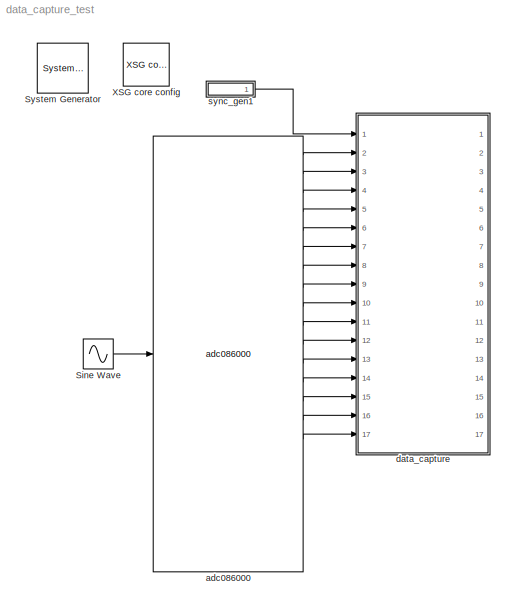
MODEL data_capture_test
KIND model
BLOCK [Reference]  System Generator  REF=xbsIndex_r4/ System Generator
  AttributesFormatString = System\\nGenerator
  FunctionWithSeparateData = off
  Ports = []
  RTWMemSecDataConstants = Inherit from model
  RTWMemSecDataInternal = Inherit from model
  RTWMemSecDataParameters = Inherit from model
  RTWMemSecFuncExecute = Inherit from model
  RTWMemSecFuncInitTerm = Inherit from model
  ShowPortLabels = FromPortIcon
  SourceBlock = xbsIndex_r4/ System Generator
  SourceType = Xilinx System Generator Block
  SystemSampleTime = -1
  Tag = genX
  UserData = DataTag0
  UserDataPersistent = on
  block_type = sysgen
  block_version = 10.1.3
  clock_wrapper = Clock Enables
  core_generation = According to Block Masks
  dbl_ovrd = According to Block Masks
  dcm_input_clock_period = 100
  deprecated_control = off
  directory = ./roach_spec_2adc_borph2/sysgen
  eval_field = 0
  has_advanced_control = 0
  incr_netlist = off
  infoedit = System Generator
  package = ff1136
  part = xc5vsx95t
  run_coregen = off
  sg_icon_stat = 51,50,-1,-1,red,beige,0,07734,right
  sg_mask_display = fprintf('','COMMENT: begin icon graphics');\npatch([0 51 51 0 ],[0 0 50 50 ],[0.93 0.92 0.86]);\npatch([12 4 16 4 12 25 29 33 47 36 25 17 29 17 25 36 47 33 29 25 12 ],[5 13 25 37 45 45 41 45 45 34 45 37 25 13 5 16 5 5 9 5 5 ],[0.6 0.2 0.25]);\nplot([0 51 51 0 0 ],[0 0 50 50 0 ]);\nfprintf('','COMMENT: end icon graphics');\nfprintf('','COMMENT: begin icon text');\nfprintf('','COMMENT: end icon text...<+5ch>
  sggui_pos = -1,-1,-1,-1
  simulink_period = 1
  speed = -1
  synthesis_tool = XST
  sysclk_period = 10
  testbench = off
  trim_vbits = Everywhere in SubSystem
  xilinxfamily = virtex5
BLOCK [Sin] Sine Wave
  Frequency = 8*pi/3
  Ports = [0, 1]
  SampleTime = 1/16
  Samples = 2*pi/4
  SineType = Time based
BLOCK [Reference] XSG core config  REF=xps_library/XSG core config  (lib defined in mdl_00b5cec29cd0, mdl_02ab6ecaa3d1, +5 more)
  BEE2_ctrl_clk_src = sys_clk
  BEE2_usr_clk_src = sys_clk
  CORR_clk_src = sys_clk
  FunctionWithSeparateData = off
  Ports = []
  ROACH_clk_src = adc0_clk
  RTWMemSecDataConstants = Inherit from model
  RTWMemSecDataInternal = Inherit from model
  RTWMemSecDataParameters = Inherit from model
  RTWMemSecFuncExecute = Inherit from model
  RTWMemSecFuncInitTerm = Inherit from model
  ShowPortLabels = FromPortIcon
  SourceBlock = xps_library/XSG core config
  SourceType = xsg core config
  SystemSampleTime = -1
  Tag = xps:xsg
  clk_rate = 100
  clk_src = adc0_clk
  gpio_clk_bit_index = 0
  gpio_clk_io_group = iBOB:sma
  hw_sys = ROACH:sx95t
  iBOB_clk_src = sys_clk
  ibob_linux = off
  mpc_type = powerpc440_ext
  sample_period = 1
  synthesis_tool = XST
BLOCK [Reference] adc086000  REF=xps_library/adc086000  (lib defined in mdl_00b5cec29cd0, mdl_02ab6ecaa3d1, +5 more)
  FunctionWithSeparateData = off
  Ports = [1, 22]
  RTWMemSecDataConstants = Inherit from model
  RTWMemSecDataInternal = Inherit from model
  RTWMemSecDataParameters = Inherit from model
  RTWMemSecFuncExecute = Inherit from model
  RTWMemSecFuncInitTerm = Inherit from model
  ShowPortLabels = FromPortIcon
  SourceBlock = xps_library/adc086000
  SourceType = adc_086000
  SystemSampleTime = -1
  Tag = xps:adc086000
  adc_brd = adc0
  adc_clk_rate = 400
  adc_interleave = on
  sample_period = 1
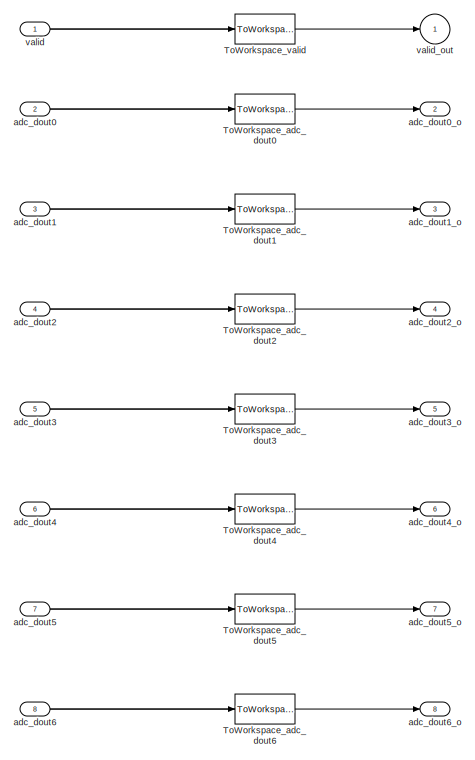
[diagram: data_capture - part 1/2, full width, top band]
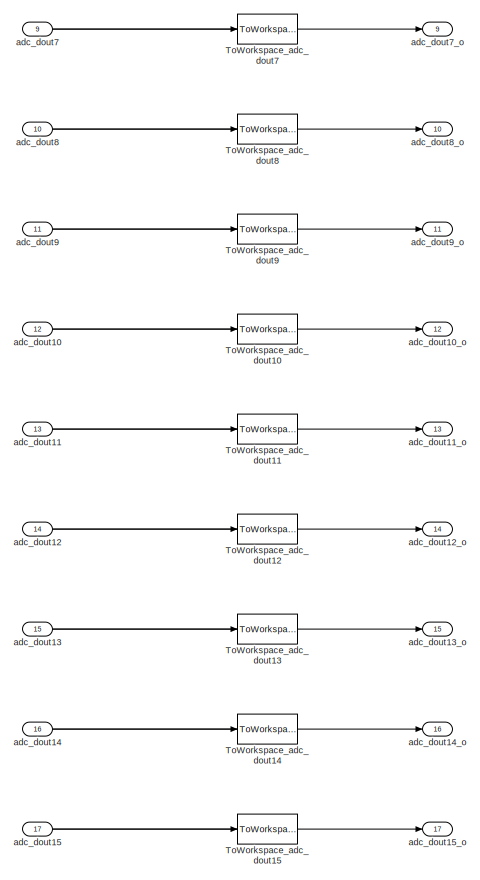
[diagram: data_capture - part 2/2, full width, bottom band]
BLOCK [SubSystem] data_capture
  AncestorBlock = casper_library/Scopes/data_capture
  FunctionWithSeparateData = off
  MaskCallbackString = |
  MaskDescription = This block is useful for capturing parallel data streams\nsimultaneously and sending the data in structures for analysis\nusing MATLAB.  It is intended as a partial replacement for the\nSimulink scope block when used with the functions in data_capture_tools.\n\nThe block does not alter the data at all and costs no hardware\nbecause it is purely a simulation block.  The block's Simulink\noutputs ar...<+47ch>
  MaskEnableString = on,on
  MaskIconFrame = on
  MaskIconOpaque = off
  MaskIconRotate = none
  MaskIconUnits = autoscale
  MaskInitialization = data_capture_init(gcb, ...\n    'stream_name', stream_name, ...\n    'nsimult_streams', nsimult_streams);
  MaskPromptString = Stream Name|Number Of Simultaneous Streams
  MaskStyleString = edit,edit
  MaskTabNameString = ,
  MaskToolTipString = on,on
  MaskTunableValueString = on,on
  MaskType = data_capture
  MaskValueString = adc_dout|16
  MaskVarAliasString = ,
  MaskVariables = stream_name=&1;nsimult_streams=@2;
  MaskVisibilityString = on,on
  MinAlgLoopOccurrences = off
  Ports = [17, 17]
  RTWSystemCode = Auto
  UserData = DataTag1
  UserDataPersistent = on
BLOCK [ToWorkspace] data_capture/ToWorkspace_adc_dout0
  MaxDataPoints = inf
  SampleTime = -1
  SaveFormat = Structure
  VariableName = adc_dout0
BLOCK [ToWorkspace] data_capture/ToWorkspace_adc_dout1
  MaxDataPoints = inf
  SampleTime = -1
  SaveFormat = Structure
  VariableName = adc_dout1
BLOCK [ToWorkspace] data_capture/ToWorkspace_adc_dout10
  MaxDataPoints = inf
  SampleTime = -1
  SaveFormat = Structure
  VariableName = adc_dout10
BLOCK [ToWorkspace] data_capture/ToWorkspace_adc_dout11
  MaxDataPoints = inf
  SampleTime = -1
  SaveFormat = Structure
  VariableName = adc_dout11
BLOCK [ToWorkspace] data_capture/ToWorkspace_adc_dout12
  MaxDataPoints = inf
  SampleTime = -1
  SaveFormat = Structure
  VariableName = adc_dout12
BLOCK [ToWorkspace] data_capture/ToWorkspace_adc_dout13
  MaxDataPoints = inf
  SampleTime = -1
  SaveFormat = Structure
  VariableName = adc_dout13
BLOCK [ToWorkspace] data_capture/ToWorkspace_adc_dout14
  MaxDataPoints = inf
  SampleTime = -1
  SaveFormat = Structure
  VariableName = adc_dout14
BLOCK [ToWorkspace] data_capture/ToWorkspace_adc_dout15
  MaxDataPoints = inf
  SampleTime = -1
  SaveFormat = Structure
  VariableName = adc_dout15
BLOCK [ToWorkspace] data_capture/ToWorkspace_adc_dout2
  MaxDataPoints = inf
  SampleTime = -1
  SaveFormat = Structure
  VariableName = adc_dout2
BLOCK [ToWorkspace] data_capture/ToWorkspace_adc_dout3
  MaxDataPoints = inf
  SampleTime = -1
  SaveFormat = Structure
  VariableName = adc_dout3
BLOCK [ToWorkspace] data_capture/ToWorkspace_adc_dout4
  MaxDataPoints = inf
  SampleTime = -1
  SaveFormat = Structure
  VariableName = adc_dout4
BLOCK [ToWorkspace] data_capture/ToWorkspace_adc_dout5
  MaxDataPoints = inf
  SampleTime = -1
  SaveFormat = Structure
  VariableName = adc_dout5
BLOCK [ToWorkspace] data_capture/ToWorkspace_adc_dout6
  MaxDataPoints = inf
  SampleTime = -1
  SaveFormat = Structure
  VariableName = adc_dout6
BLOCK [ToWorkspace] data_capture/ToWorkspace_adc_dout7
  MaxDataPoints = inf
  SampleTime = -1
  SaveFormat = Structure
  VariableName = adc_dout7
BLOCK [ToWorkspace] data_capture/ToWorkspace_adc_dout8
  MaxDataPoints = inf
  SampleTime = -1
  SaveFormat = Structure
  VariableName = adc_dout8
BLOCK [ToWorkspace] data_capture/ToWorkspace_adc_dout9
  MaxDataPoints = inf
  SampleTime = -1
  SaveFormat = Structure
  VariableName = adc_dout9
BLOCK [ToWorkspace] data_capture/ToWorkspace_valid
  MaxDataPoints = inf
  SampleTime = -1
  SaveFormat = Structure
  VariableName = adc_dout_valid
BLOCK [Inport] data_capture/adc_dout0
  IconDisplay = Port number
  OutDataType = sfix(16)
  OutScaling = 2^0
  Port = 2
BLOCK [Outport] data_capture/adc_dout0_o
  IconDisplay = Port number
  OutDataType = sfix(16)
  OutScaling = 2^0
  Port = 2
BLOCK [Inport] data_capture/adc_dout1
  IconDisplay = Port number
  OutDataType = sfix(16)
  OutScaling = 2^0
  Port = 3
BLOCK [Inport] data_capture/adc_dout10
  IconDisplay = Port number
  OutDataType = sfix(16)
  OutScaling = 2^0
  Port = 12
BLOCK [Outport] data_capture/adc_dout10_o
  IconDisplay = Port number
  OutDataType = sfix(16)
  OutScaling = 2^0
  Port = 12
BLOCK [Inport] data_capture/adc_dout11
  IconDisplay = Port number
  OutDataType = sfix(16)
  OutScaling = 2^0
  Port = 13
BLOCK [Outport] data_capture/adc_dout11_o
  IconDisplay = Port number
  OutDataType = sfix(16)
  OutScaling = 2^0
  Port = 13
BLOCK [Inport] data_capture/adc_dout12
  IconDisplay = Port number
  OutDataType = sfix(16)
  OutScaling = 2^0
  Port = 14
BLOCK [Outport] data_capture/adc_dout12_o
  IconDisplay = Port number
  OutDataType = sfix(16)
  OutScaling = 2^0
  Port = 14
BLOCK [Inport] data_capture/adc_dout13
  IconDisplay = Port number
  OutDataType = sfix(16)
  OutScaling = 2^0
  Port = 15
BLOCK [Outport] data_capture/adc_dout13_o
  IconDisplay = Port number
  OutDataType = sfix(16)
  OutScaling = 2^0
  Port = 15
BLOCK [Inport] data_capture/adc_dout14
  IconDisplay = Port number
  OutDataType = sfix(16)
  OutScaling = 2^0
  Port = 16
BLOCK [Outport] data_capture/adc_dout14_o
  IconDisplay = Port number
  OutDataType = sfix(16)
  OutScaling = 2^0
  Port = 16
BLOCK [Inport] data_capture/adc_dout15
  IconDisplay = Port number
  OutDataType = sfix(16)
  OutScaling = 2^0
  Port = 17
BLOCK [Outport] data_capture/adc_dout15_o
  IconDisplay = Port number
  OutDataType = sfix(16)
  OutScaling = 2^0
  Port = 17
BLOCK [Outport] data_capture/adc_dout1_o
  IconDisplay = Port number
  OutDataType = sfix(16)
  OutScaling = 2^0
  Port = 3
BLOCK [Inport] data_capture/adc_dout2
  IconDisplay = Port number
  OutDataType = sfix(16)
  OutScaling = 2^0
  Port = 4
BLOCK [Outport] data_capture/adc_dout2_o
  IconDisplay = Port number
  OutDataType = sfix(16)
  OutScaling = 2^0
  Port = 4
BLOCK [Inport] data_capture/adc_dout3
  IconDisplay = Port number
  OutDataType = sfix(16)
  OutScaling = 2^0
  Port = 5
BLOCK [Outport] data_capture/adc_dout3_o
  IconDisplay = Port number
  OutDataType = sfix(16)
  OutScaling = 2^0
  Port = 5
BLOCK [Inport] data_capture/adc_dout4
  IconDisplay = Port number
  OutDataType = sfix(16)
  OutScaling = 2^0
  Port = 6
BLOCK [Outport] data_capture/adc_dout4_o
  IconDisplay = Port number
  OutDataType = sfix(16)
  OutScaling = 2^0
  Port = 6
BLOCK [Inport] data_capture/adc_dout5
  IconDisplay = Port number
  OutDataType = sfix(16)
  OutScaling = 2^0
  Port = 7
BLOCK [Outport] data_capture/adc_dout5_o
  IconDisplay = Port number
  OutDataType = sfix(16)
  OutScaling = 2^0
  Port = 7
BLOCK [Inport] data_capture/adc_dout6
  IconDisplay = Port number
  OutDataType = sfix(16)
  OutScaling = 2^0
  Port = 8
BLOCK [Outport] data_capture/adc_dout6_o
  IconDisplay = Port number
  OutDataType = sfix(16)
  OutScaling = 2^0
  Port = 8
BLOCK [Inport] data_capture/adc_dout7
  IconDisplay = Port number
  OutDataType = sfix(16)
  OutScaling = 2^0
  Port = 9
BLOCK [Outport] data_capture/adc_dout7_o
  IconDisplay = Port number
  OutDataType = sfix(16)
  OutScaling = 2^0
  Port = 9
BLOCK [Inport] data_capture/adc_dout8
  IconDisplay = Port number
  OutDataType = sfix(16)
  OutScaling = 2^0
  Port = 10
BLOCK [Outport] data_capture/adc_dout8_o
  IconDisplay = Port number
  OutDataType = sfix(16)
  OutScaling = 2^0
  Port = 10
BLOCK [Inport] data_capture/adc_dout9
  IconDisplay = Port number
  OutDataType = sfix(16)
  OutScaling = 2^0
  Port = 11
BLOCK [Outport] data_capture/adc_dout9_o
  IconDisplay = Port number
  OutDataType = sfix(16)
  OutScaling = 2^0
  Port = 11
BLOCK [Inport] data_capture/valid
  IconDisplay = Port number
  OutDataType = sfix(16)
  OutScaling = 2^0
BLOCK [Outport] data_capture/valid_out
  IconDisplay = Port number
  OutDataType = sfix(16)
  OutScaling = 2^0
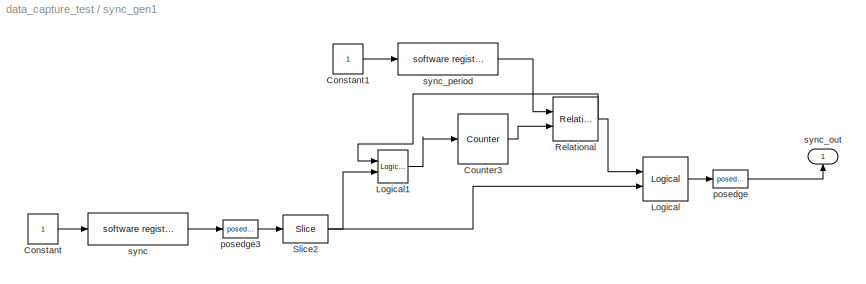
BLOCK [SubSystem] sync_gen1
  AttributesFormatString = sim_sync_period=96
  FunctionWithSeparateData = off
  MaskCallbackString = |||||||
  MaskDescription = sim_acc_len: The accumulation length (i.e. number of spectra to be summed)  that will be used for simulation. If there is no vector accumulator in your design, use 1.  The simulated accumulation length is used to reduce the amount of time the design takes for simulation.\n\ngen_acc_len:  The accumaltion length that will be used for generation.\n\nfft_size: The size of the FFT.\n\nfft_simult_inputs...<+682ch>
  MaskEnableString = on,on,on,on,on,on,on,on
  MaskHelp = \nSyncPeriod=LCM(reorder_vec)*(acc_num)*(pfb_fir_len)*(fft_size/fft_simult_inputs)\n\nSee CASPER sync pulse memo for more details.\n
  MaskIconFrame = on
  MaskIconOpaque = on
  MaskIconRotate = none
  MaskIconUnits = autoscale
  MaskInitialization = sync_gen_init(gcb, ...\n    'sim_acc_len', sim_acc_len, ...\n    'fft_size', fft_size, ...\n    'gen_acc_len', gen_acc_len, ...\n    'fft_simult_inputs', fft_simult_inputs,...\n    'pfb_fir_taps', pfb_fir_taps, ...\n    'reorder_vec', reorder_vec, ...\n    'use_soft_reg', use_soft_reg, ...\n    'scale', scale);
  MaskPromptString = Simulation Accumulation Length|Set on FPGA using software registers|Synthesized Accumulation Length|FFT Size|Simultaneous Inputs (FFT)|Taps in pfb_fir (use 1 if no pfb_fir)|Reorder Orders (e.g. [2 2 2])|Scale
  MaskStyleString = edit,checkbox,edit,edit,edit,edit,edit,edit
  MaskTabNameString = ,,,,,,,
  MaskToolTipString = on,on,on,on,on,on,on,on
  MaskTunableValueString = on,on,on,on,on,on,on,on
  MaskType = sync_gen
  MaskValueString = 6|off|6|128|16|1|2|2
  MaskVarAliasString = ,,,,,,,
  MaskVariables = sim_acc_len=@1;use_soft_reg=@2;gen_acc_len=@3;fft_size=@4;fft_simult_inputs=@5;pfb_fir_taps=@6;reorder_vec=@7;scale=@8;
  MaskVisibilityString = on,on,on,on,on,on,on,on
  MinAlgLoopOccurrences = off
  Ports = [0, 1]
  RTWSystemCode = Auto
  UserData = DataTag2
  UserDataPersistent = on
BLOCK [Constant] sync_gen1/Constant
  OutDataType = sfix(16)
  OutScaling = 2^0
BLOCK [Constant] sync_gen1/Constant1
  OutDataType = sfix(16)
  OutScaling = 2^0
BLOCK [Reference] sync_gen1/Counter3  REF=xbsIndex_r4/Counter
  Ports = [1, 1]
  SourceBlock = xbsIndex_r4/Counter
  SourceType = Xilinx Counter Block
  arith_type = Unsigned
  bin_pt = 0
  block_type = counter
  block_version = 10.1.3
  cnt_by_val = 1
  cnt_to = Inf
  cnt_type = Free Running
  dbl_ovrd = off
  en = off
  explicit_period = off
  has_advanced_control = 0
  implementation = Fabric
  infoedit = Hardware notes: Free running counters are the least expensive in hardware.  A count limited counter is implemented by combining a counter with a comparator.
  load_pin = off
  n_bits = 32
  operation = Up
  period = 1
  rst = on
  sg_icon_stat = 50,50,1,1,white,blue,0,300e9576,right
  sg_mask_display = fprintf('','COMMENT: begin icon graphics');\npatch([0 60 60 0 ],[0 0 60 60 ],[0.77 0.82 0.91]);\npatch([14 4 18 4 14 30 34 38 55 42 29 20 35 20 29 42 55 38 34 30 14 ],[6 16 30 44 54 54 50 54 54 41 54 45 30 15 6 19 6 6 10 6 6 ],[0.98 0.96 0.92]);\nplot([0 60 60 0 0 ],[0 0 60 60 0 ]);\nfprintf('','COMMENT: end icon graphics');\nfprintf('','COMMENT: begin icon text');\ncolor('black');port_label('inpu...<+99ch>
  sggui_pos = 20,20,348,619
  start_count = 0
  use_behavioral_HDL = off
  use_rpm = on
  xl_area = [0, 0, 0, 0, 0, 0, 0]
  xl_use_area = off
BLOCK [Reference] sync_gen1/Logical  REF=xbsIndex_r4/Logical
  Ports = [2, 1]
  SourceBlock = xbsIndex_r4/Logical
  SourceType = Xilinx Logical Block Block
  align_bp = on
  arith_type = Unsigned
  bin_pt = 2
  block_type = logical
  block_version = 10.1.3
  dbl_ovrd = off
  en = off
  has_advanced_control = 0
  inputs = 2
  latency = 0
  logical_function = OR
  n_bits = 8
  precision = Full
  sg_icon_stat = 45,44,2,1,white,blue,0,f4a65842,right
  sg_mask_display = fprintf('','COMMENT: begin icon graphics');\npatch([0 55 55 0 ],[0 0 60 60 ],[0.77 0.82 0.91]);\npatch([13 4 17 4 13 28 32 36 52 40 28 19 32 19 28 40 52 36 32 28 13 ],[8 17 30 43 52 52 48 52 52 40 52 43 30 17 8 20 8 8 12 8 8 ],[0.98 0.96 0.92]);\nplot([0 55 55 0 0 ],[0 0 60 60 0 ]);\nfprintf('','COMMENT: end icon graphics');\nfprintf('','COMMENT: begin icon text');\ncolor('black');disp('\\newlineo...<+75ch>
  sggui_pos = -1,-1,-1,-1
  xl_area = [0, 0, 0, 0, 0, 0, 0]
  xl_use_area = off
BLOCK [Reference] sync_gen1/Logical1  REF=xbsIndex_r4/Logical
  Ports = [2, 1]
  SourceBlock = xbsIndex_r4/Logical
  SourceType = Xilinx Logical Block Block
  align_bp = on
  arith_type = Unsigned
  bin_pt = 2
  block_type = logical
  block_version = 10.1.3
  dbl_ovrd = off
  en = off
  has_advanced_control = 0
  inputs = 2
  latency = 0
  logical_function = OR
  n_bits = 8
  precision = Full
  sg_icon_stat = 30,33,2,1,white,blue,0,f4a65842,right
  sg_mask_display = fprintf('','COMMENT: begin icon graphics');\npatch([0 55 55 0 ],[0 0 60 60 ],[0.77 0.82 0.91]);\npatch([13 4 17 4 13 28 32 36 52 40 28 19 32 19 28 40 52 36 32 28 13 ],[8 17 30 43 52 52 48 52 52 40 52 43 30 17 8 20 8 8 12 8 8 ],[0.98 0.96 0.92]);\nplot([0 55 55 0 0 ],[0 0 60 60 0 ]);\nfprintf('','COMMENT: end icon graphics');\nfprintf('','COMMENT: begin icon text');\ncolor('black');disp('\\newlineo...<+75ch>
  sggui_pos = -1,-1,-1,-1
  xl_area = [0, 0, 0, 0, 0, 0, 0]
  xl_use_area = off
BLOCK [Reference] sync_gen1/Relational  REF=xbsIndex_r4/Relational
  Ports = [2, 1]
  SourceBlock = xbsIndex_r4/Relational
  SourceType = Xilinx Arithmetic Relational Operator Block
  block_type = relational
  block_version = 10.1.3
  dbl_ovrd = off
  en = off
  has_advanced_control = 0
  latency = 1
  mode = a=b
  sg_icon_stat = 45,44,2,1,white,blue,0,1cf02e61,right
  sg_mask_display = fprintf('','COMMENT: begin icon graphics');\npatch([0 55 55 0 ],[0 0 56 56 ],[0.77 0.82 0.91]);\npatch([13 4 17 4 13 28 32 36 52 40 28 19 32 19 28 40 52 36 32 28 13 ],[6 15 28 41 50 50 46 50 50 38 50 41 28 15 6 18 6 6 10 6 6 ],[0.98 0.96 0.92]);\nplot([0 55 55 0 0 ],[0 0 56 56 0 ]);\nfprintf('','COMMENT: end icon graphics');\nfprintf('','COMMENT: begin icon text');\ncolor('black');port_label('inpu...<+168ch>
  sggui_pos = -1,-1,-1,-1
  xl_area = [0, 0, 0, 0, 0, 0, 0]
  xl_use_area = off
BLOCK [Reference] sync_gen1/Slice2  REF=xbsIndex_r4/Slice
  Ports = [1, 1]
  SourceBlock = xbsIndex_r4/Slice
  SourceType = Xilinx Bit Slice Extractor Block
  base0 = LSB of Input
  base1 = MSB of Input
  bit0 = 0
  bit1 = 0
  block_type = slice
  block_version = 10.1.3
  boolean_output = on
  dbl_ovrd = off
  has_advanced_control = 0
  infoedit = Extracts a given range of bits from each input sample and presents it at the output.  The output type is ordinarily unsigned with binary point at zero, but can be Boolean when the slice is one bit wide.<P><P>Hardware notes: In hardware this block costs nothing.
  mode = Lower Bit Location + Width
  nbits = 1
  sg_icon_stat = 45,28,1,1,white,blue,0,b1026674,right
  sg_mask_display = fprintf('','COMMENT: begin icon graphics');\npatch([0 60 60 0 ],[0 0 30 30 ],[0.77 0.82 0.91]);\npatch([22 17 24 17 22 30 32 34 42 35 29 24 30 24 29 35 42 34 32 30 22 ],[3 8 15 22 27 27 25 27 27 20 26 21 15 9 4 10 3 3 5 3 3 ],[0.98 0.96 0.92]);\nplot([0 60 60 0 0 ],[0 0 30 30 0 ]);\nfprintf('','COMMENT: end icon graphics');\nfprintf('','COMMENT: begin icon text');\ncolor('black');port_label('outpu...<+55ch>
  sggui_pos = -1,-1,-1,-1
BLOCK [Reference] sync_gen1/posedge  REF=casper_library/Misc/posedge  (lib defined in mdl_138b2fc3435f, mdl_4ed325b712b3, +2 more)
  FunctionWithSeparateData = off
  Ports = [1, 1]
  RTWMemSecDataConstants = Inherit from model
  RTWMemSecDataInternal = Inherit from model
  RTWMemSecDataParameters = Inherit from model
  RTWMemSecFuncExecute = Inherit from model
  RTWMemSecFuncInitTerm = Inherit from model
  ShowPortLabels = FromPortIcon
  SourceBlock = casper_library/Misc/posedge
  SourceType = posedge
  SystemSampleTime = -1
  Tag = Rising Edge Detector
BLOCK [Reference] sync_gen1/posedge3  REF=casper_library/Misc/posedge  (lib defined in mdl_138b2fc3435f, mdl_4ed325b712b3, +2 more)
  FunctionWithSeparateData = off
  Ports = [1, 1]
  RTWMemSecDataConstants = Inherit from model
  RTWMemSecDataInternal = Inherit from model
  RTWMemSecDataParameters = Inherit from model
  RTWMemSecFuncExecute = Inherit from model
  RTWMemSecFuncInitTerm = Inherit from model
  ShowPortLabels = FromPortIcon
  SourceBlock = casper_library/Misc/posedge
  SourceType = posedge
  SystemSampleTime = -1
  Tag = Rising Edge Detector
BLOCK [Reference] sync_gen1/sync  REF=xps_library/software register  (lib defined in mdl_00b5cec29cd0, mdl_02ab6ecaa3d1, +5 more)
  FunctionWithSeparateData = off
  Ports = [1, 1]
  RTWMemSecDataConstants = Inherit from model
  RTWMemSecDataInternal = Inherit from model
  RTWMemSecDataParameters = Inherit from model
  RTWMemSecFuncExecute = Inherit from model
  RTWMemSecFuncInitTerm = Inherit from model
  ShowPortLabels = FromPortIcon
  SourceBlock = xps_library/software register
  SystemSampleTime = -1
  Tag = xps:sw_reg
  arith_type = Unsigned
  bin_pt = 0
  bitwidth = 32
  gw_name = data_capture_test_sync_gen1_sync_user_data_out
  io_dir = From Processor
  sample_period = 1
BLOCK [Outport] sync_gen1/sync_out
  IconDisplay = Port number
  OutDataType = sfix(16)
  OutScaling = 2^0
BLOCK [Reference] sync_gen1/sync_period  REF=xps_library/software register  (lib defined in mdl_00b5cec29cd0, mdl_02ab6ecaa3d1, +5 more)
  FunctionWithSeparateData = off
  Ports = [1, 1]
  RTWMemSecDataConstants = Inherit from model
  RTWMemSecDataInternal = Inherit from model
  RTWMemSecDataParameters = Inherit from model
  RTWMemSecFuncExecute = Inherit from model
  RTWMemSecFuncInitTerm = Inherit from model
  ShowPortLabels = FromPortIcon
  SourceBlock = xps_library/software register
  SystemSampleTime = -1
  Tag = xps:sw_reg
  arith_type = Unsigned
  bin_pt = 0
  bitwidth = 32
  gw_name = data_capture_test_sync_gen1_sync_period_user_data_out
  io_dir = From Processor
  sample_period = 1
LINE Sine Wave:1 -> adc086000:1
LINE adc086000:1 -> data_capture:2
LINE adc086000:10 -> data_capture:11
LINE adc086000:11 -> data_capture:12
LINE adc086000:12 -> data_capture:13
LINE adc086000:13 -> data_capture:14
LINE adc086000:14 -> data_capture:15
LINE adc086000:15 -> data_capture:16
LINE adc086000:16 -> data_capture:17
LINE adc086000:2 -> data_capture:3
LINE adc086000:3 -> data_capture:4
LINE adc086000:4 -> data_capture:5
LINE adc086000:5 -> data_capture:6
LINE adc086000:6 -> data_capture:7
LINE adc086000:7 -> data_capture:8
LINE adc086000:8 -> data_capture:9
LINE adc086000:9 -> data_capture:10
NET data_capture/adc_dout0:1 -> data_capture/ToWorkspace_adc_dout0:1, data_capture/adc_dout0_o:1
NET data_capture/adc_dout10:1 -> data_capture/ToWorkspace_adc_dout10:1, data_capture/adc_dout10_o:1
NET data_capture/adc_dout11:1 -> data_capture/ToWorkspace_adc_dout11:1, data_capture/adc_dout11_o:1
NET data_capture/adc_dout12:1 -> data_capture/ToWorkspace_adc_dout12:1, data_capture/adc_dout12_o:1
NET data_capture/adc_dout13:1 -> data_capture/ToWorkspace_adc_dout13:1, data_capture/adc_dout13_o:1
NET data_capture/adc_dout14:1 -> data_capture/ToWorkspace_adc_dout14:1, data_capture/adc_dout14_o:1
NET data_capture/adc_dout15:1 -> data_capture/ToWorkspace_adc_dout15:1, data_capture/adc_dout15_o:1
NET data_capture/adc_dout1:1 -> data_capture/ToWorkspace_adc_dout1:1, data_capture/adc_dout1_o:1
NET data_capture/adc_dout2:1 -> data_capture/ToWorkspace_adc_dout2:1, data_capture/adc_dout2_o:1
NET data_capture/adc_dout3:1 -> data_capture/ToWorkspace_adc_dout3:1, data_capture/adc_dout3_o:1
NET data_capture/adc_dout4:1 -> data_capture/ToWorkspace_adc_dout4:1, data_capture/adc_dout4_o:1
NET data_capture/adc_dout5:1 -> data_capture/ToWorkspace_adc_dout5:1, data_capture/adc_dout5_o:1
NET data_capture/adc_dout6:1 -> data_capture/ToWorkspace_adc_dout6:1, data_capture/adc_dout6_o:1
NET data_capture/adc_dout7:1 -> data_capture/ToWorkspace_adc_dout7:1, data_capture/adc_dout7_o:1
NET data_capture/adc_dout8:1 -> data_capture/ToWorkspace_adc_dout8:1, data_capture/adc_dout8_o:1
NET data_capture/adc_dout9:1 -> data_capture/ToWorkspace_adc_dout9:1, data_capture/adc_dout9_o:1
NET data_capture/valid:1 -> data_capture/ToWorkspace_valid:1, data_capture/valid_out:1
LINE sync_gen1/Constant1:1 -> sync_gen1/sync_period:1
LINE sync_gen1/Constant:1 -> sync_gen1/sync:1
LINE sync_gen1/Counter3:1 -> sync_gen1/Relational:2
LINE sync_gen1/Logical1:1 -> sync_gen1/Counter3:1
LINE sync_gen1/Logical:1 -> sync_gen1/posedge:1
NET sync_gen1/Relational:1 -> sync_gen1/Logical1:1, sync_gen1/Logical:1
NET sync_gen1/Slice2:1 -> sync_gen1/Logical1:2, sync_gen1/Logical:2
LINE sync_gen1/posedge3:1 -> sync_gen1/Slice2:1
LINE sync_gen1/posedge:1 -> sync_gen1/sync_out:1
LINE sync_gen1/sync:1 -> sync_gen1/posedge3:1
LINE sync_gen1/sync_period:1 -> sync_gen1/Relational:1
LINE sync_gen1:1 -> data_capture:1
note: NET lines group one-source signal fan-out (src -> all destinations, sorted); 1:1 wires keep LINE
